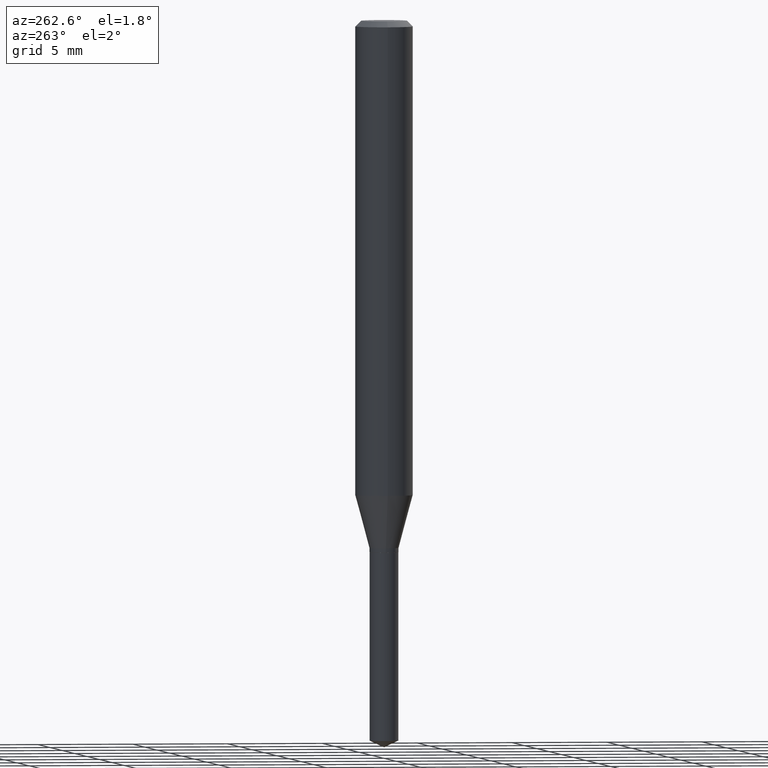
[diagram: clean part render]
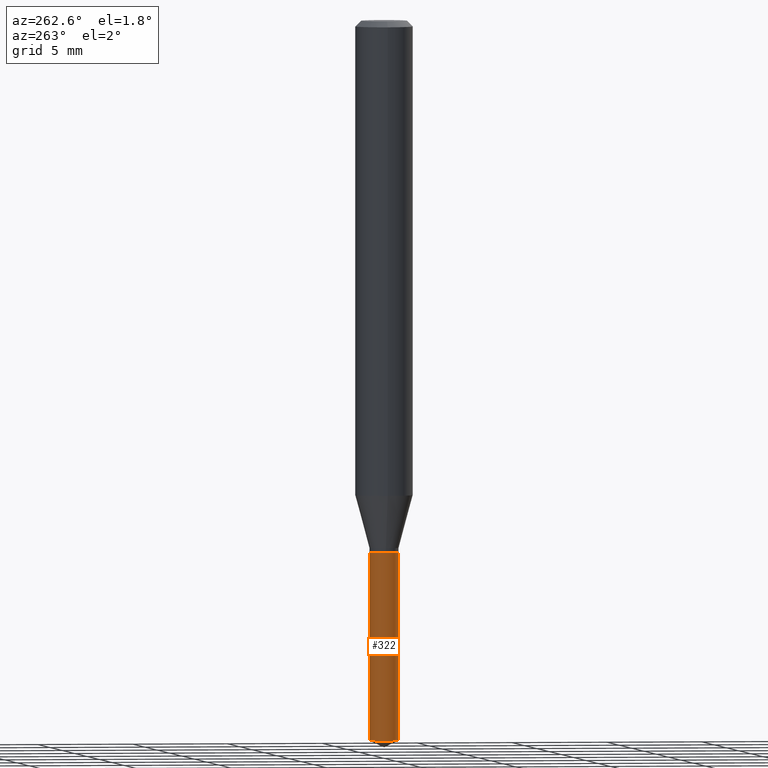
[diagram: same view with one face highlighted and labeled with its STEP entity id]
A machine part, auxiliary view. The second image highlights one B-rep face of the part: STEP entity #322.
In plain terms, the highlighted cylindrical surface (edge-blend (fillet) strip) has radius 0.7595 mm, axis along (-0, 0, 1).
Its self-contained STEP definition (entity closure, byte-faithful):
#3 = CARTESIAN_POINT ( 'NONE',  ( 2.124522779923061410E-16, 0.02989999999999482308, -1.482157401021165555 ) ) ;
#4 = DIRECTION ( 'NONE',  ( -6.982962677686266711E-15, -1.000000000000000000, 4.568307681712814929E-15 ) ) ;
#21 = EDGE_CURVE ( 'NONE', #461, #173, #294, .T. ) ;
#38 = ORIENTED_EDGE ( 'NONE', *, *, #218, .T. ) ;
#58 = ORIENTED_EDGE ( 'NONE', *, *, #133, .F. ) ;
#59 = FACE_OUTER_BOUND ( 'NONE', #423, .T. ) ;
#60 = VERTEX_POINT ( 'NONE', #223 ) ;
#61 = DIRECTION ( 'NONE',  ( -2.445470214571802116E-29, 3.491479321953280158E-15, 1.000000000000000000 ) ) ;
#93 = CARTESIAN_POINT ( 'NONE',  ( -2.087905840627830827E-16, -0.02990000000000516897, -1.482157401021165555 ) ) ;
#109 = VERTEX_POINT ( 'NONE', #93 ) ;
#133 = EDGE_CURVE ( 'NONE', #173, #60, #487, .T. ) ;
#173 = VERTEX_POINT ( 'NONE', #174 ) ;
#174 = CARTESIAN_POINT ( 'NONE',  ( 2.124522779923062642E-16, 0.02989999999999617963, -1.094500000000000028 ) ) ;
#176 = ORIENTED_EDGE ( 'NONE', *, *, #21, .F. ) ;
#178 = CARTESIAN_POINT ( 'NONE',  ( 2.676565608369631794E-29, -3.821426325363822773E-15, -1.094499999999999806 ) ) ;
#213 = EDGE_CURVE ( 'NONE', #461, #109, #334, .T. ) ;
#218 = EDGE_CURVE ( 'NONE', #109, #60, #243, .T. ) ;
#223 = CARTESIAN_POINT ( 'NONE',  ( -2.087905840627926230E-16, -0.02990000000000381936, -1.094499999999999806 ) ) ;
#240 = CARTESIAN_POINT ( 'NONE',  ( 3.624570236025209020E-29, -5.174924125031373128E-15, -1.482157401021165555 ) ) ;
#243 = LINE ( 'NONE', #349, #345 ) ;
#246 = DIRECTION ( 'NONE',  ( -6.982962677686266711E-15, -1.000000000000000000, 0.000000000000000000 ) ) ;
#255 = CYLINDRICAL_SURFACE ( 'NONE', #346, 0.02989999999999999949 ) ;
#276 = AXIS2_PLACEMENT_3D ( 'NONE', #240, #450, #246 ) ;
#294 = LINE ( 'NONE', #300, #405 ) ;
#300 = CARTESIAN_POINT ( 'NONE',  ( 2.124522779922966746E-16, 0.02989999999999617963, -1.094500000000000028 ) ) ;
#304 = DIRECTION ( 'NONE',  ( -2.445470214571802116E-29, 3.491479321953280158E-15, 1.000000000000000000 ) ) ;
#322 = ADVANCED_FACE ( 'NONE', ( #59 ), #255, .T. ) ;
#334 = CIRCLE ( 'NONE', #276, 0.02989999999999999949 ) ;
#345 = VECTOR ( 'NONE', #399, 39.37007874015748143 ) ;
#346 = AXIS2_PLACEMENT_3D ( 'NONE', #178, #61, #364 ) ;
#349 = CARTESIAN_POINT ( 'NONE',  ( -2.087905840627926230E-16, -0.02990000000000381936, -1.094499999999999806 ) ) ;
#364 = DIRECTION ( 'NONE',  ( -6.982962677686266711E-15, -1.000000000000000000, 4.568307681712814929E-15 ) ) ;
#374 = DIRECTION ( 'NONE',  ( -2.445470214571802396E-29, 3.491479321953280158E-15, 1.000000000000000000 ) ) ;
#399 = DIRECTION ( 'NONE',  ( -2.445470214571802396E-29, 3.491479321953280158E-15, 1.000000000000000000 ) ) ;
#405 = VECTOR ( 'NONE', #374, 39.37007874015748143 ) ;
#423 = EDGE_LOOP ( 'NONE', ( #176, #429, #38, #58 ) ) ;
#427 = CARTESIAN_POINT ( 'NONE',  ( 2.676565608369631794E-29, -3.821426325363822773E-15, -1.094499999999999806 ) ) ;
#429 = ORIENTED_EDGE ( 'NONE', *, *, #213, .T. ) ;
#450 = DIRECTION ( 'NONE',  ( -2.445470214571802116E-29, 3.491479321953280158E-15, 1.000000000000000000 ) ) ;
#461 = VERTEX_POINT ( 'NONE', #3 ) ;
#475 = AXIS2_PLACEMENT_3D ( 'NONE', #427, #304, #4 ) ;
#487 = CIRCLE ( 'NONE', #475, 0.02989999999999999949 ) ;